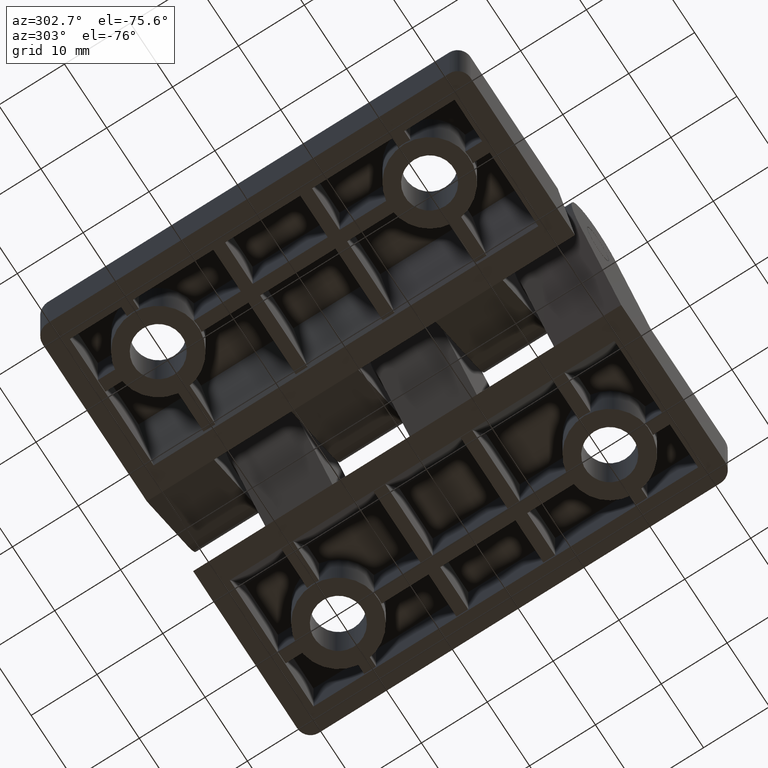
[diagram: clean part render]
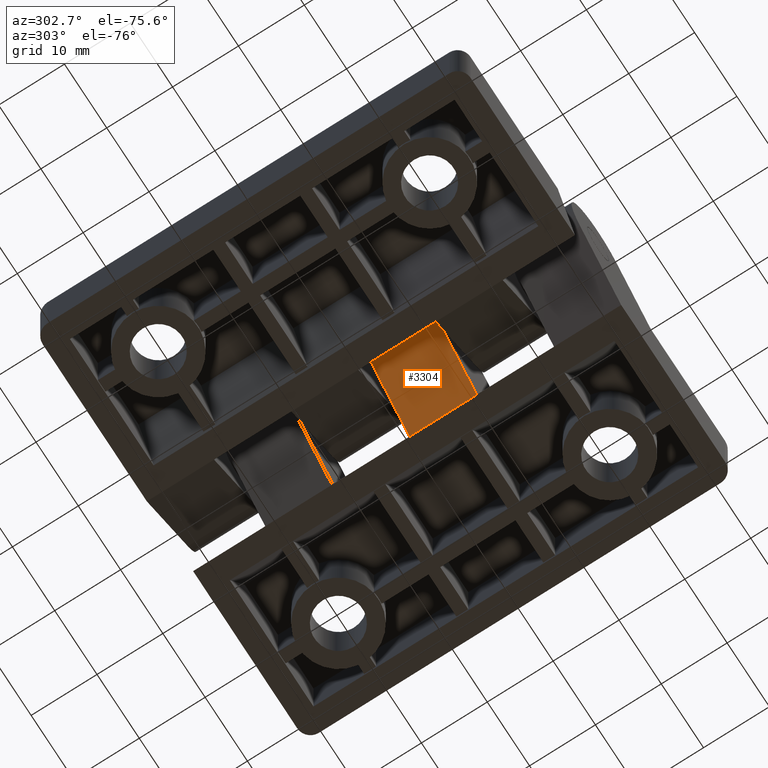
[diagram: same view with one face highlighted and labeled with its STEP entity id]
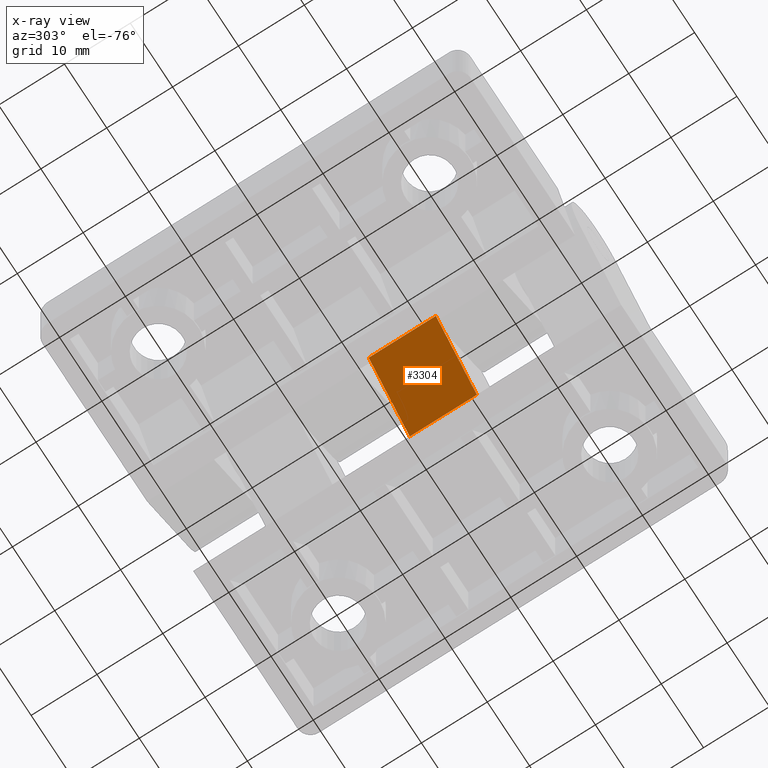
[diagram: x-ray of the same camera — body ghosted, the highlighted face saturated]
A machine part, auxiliary view. The second image highlights one B-rep face of the part: STEP entity #3304.
The next image is the same camera in x-ray: the body ghosted, the highlighted face saturated — about 0% of this face is hidden behind the body in this view.
In plain terms, the highlighted planar face has unit normal (-0.6691, 0, -0.7431).
Its self-contained STEP definition (entity closure, byte-faithful):
#216=PLANE('',#3587);
#398=FACE_OUTER_BOUND('',#620,.T.);
#620=EDGE_LOOP('',(#3042,#3043,#3044,#3045));
#925=LINE('',#5068,#1279);
#1068=LINE('',#5430,#1422);
#1070=LINE('',#5437,#1424);
#1071=LINE('',#5438,#1425);
#1279=VECTOR('',#4136,10.2);
#1422=VECTOR('',#4475,13.0291214007084);
#1424=VECTOR('',#4483,13.0291214015061);
#1425=VECTOR('',#4484,10.2);
#1614=VERTEX_POINT('',#5065);
#1615=VERTEX_POINT('',#5067);
#1736=VERTEX_POINT('',#5427);
#1738=VERTEX_POINT('',#5436);
#2001=EDGE_CURVE('',#1615,#1614,#925,.T.);
#2177=EDGE_CURVE('',#1736,#1615,#1068,.T.);
#2180=EDGE_CURVE('',#1614,#1738,#1070,.T.);
#2181=EDGE_CURVE('',#1738,#1736,#1071,.T.);
#3042=ORIENTED_EDGE('',*,*,#2177,.T.);
#3043=ORIENTED_EDGE('',*,*,#2001,.T.);
#3044=ORIENTED_EDGE('',*,*,#2180,.T.);
#3045=ORIENTED_EDGE('',*,*,#2181,.T.);
#3304=ADVANCED_FACE('',(#398),#216,.T.);
#3587=AXIS2_PLACEMENT_3D('',#5435,#4481,#4482);
#4136=DIRECTION('',(0.,-1.,0.));
#4475=DIRECTION('',(0.743144825477395,0.,-0.669130606358858));
#4481=DIRECTION('center_axis',(-0.669130606358858,0.,-0.743144825477395));
#4482=DIRECTION('ref_axis',(-0.743144825477395,0.,0.669130606358857));
#4483=DIRECTION('',(-0.743144825477395,0.,0.669130606358858));
#4484=DIRECTION('',(0.,1.,0.));
#5065=CARTESIAN_POINT('',(5.46700543455491,-10.58,-13.3999999999871));
#5067=CARTESIAN_POINT('',(5.46700543455491,-0.379999999999998,-13.3999999999871));
#5068=CARTESIAN_POINT('',(5.46700543455491,0.,-13.3999999999871));
#5427=CARTESIAN_POINT('',(-4.2155187148983,-0.379999999999998,-4.68181609680794));
#5430=CARTESIAN_POINT('',(2.06115349901195,-0.379999999999998,-10.3333571429446));
#5435=CARTESIAN_POINT('Origin',(5.46700543455491,0.,-13.3999999999871));
#5436=CARTESIAN_POINT('',(-4.2155187154911,-10.58,-4.68181609627419));
#5437=CARTESIAN_POINT('',(2.06115349901195,-10.58,-10.3333571429446));
#5438=CARTESIAN_POINT('',(-4.2155187148983,0.,-4.68181609680795));